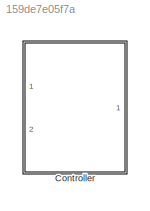
MODEL slx_159de7e05f7a
KIND library
CONFIG AbsTol = auto
CONFIG FixedStep = auto
CONFIG MaxStep = auto
CONFIG MinStep = auto
CONFIG PostLoadFcn = load 'sltestHeatpumpBusPostLoadFcn.mat'
CONFIG RelTol = 1e-3
CONFIG SampleTimeConstraint = Unconstrained
CONFIG Solver = VariableStepAuto
CONFIG SolverMode = Auto
CONFIG SolverName = VariableStepAuto
CONFIG StartTime = 0.0
CONFIG StopTime = 300
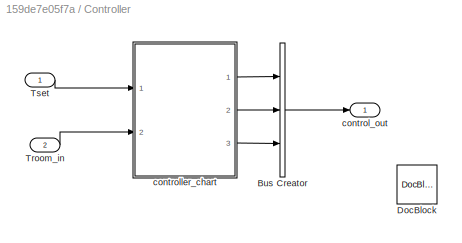
BLOCK [SubSystem] Controller
  Ports = [2, 1]
  RequestExecContextInheritance = off
  SystemSampleTime = 1
  TreatAsAtomicUnit = on
  Variant = off
BLOCK [BusCreator] Controller/Bus Creator
  DisplayOption = bar
  InheritFromInputs = on
  Inputs = 3
  NonVirtualBus = on
  OutDataTypeStr = Bus: control_bus
  Ports = [3, 1]
BLOCK [Reference] Controller/DocBlock  REF=simulink/Model-Wide
Utilities/DocBlock
  Ports = []
  SourceBlock = simulink/Model-Wide\nUtilities/DocBlock
  SourceType = DocBlock
  UserDataPersistent = on
BLOCK [Inport] Controller/Troom_in
  IconDisplay = Port number
  Port = 2
BLOCK [Inport] Controller/Tset
  IconDisplay = Port number
BLOCK [Outport] Controller/control_out
  IconDisplay = Port number
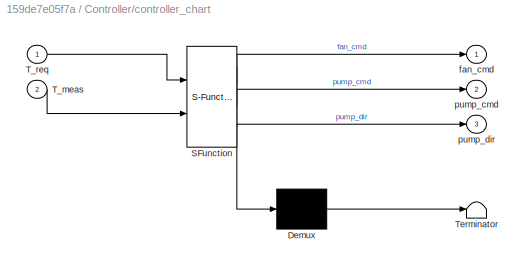
BLOCK [SubSystem] Controller/controller_chart
  ErrorFcn = Stateflow.Translate.translate
  PermitHierarchicalResolution = ExplicitOnly
  Ports = [2, 3]
  RequestExecContextInheritance = off
  SFBlockType = Chart
  TreatAsAtomicUnit = on
  Variant = off
BLOCK [Demux] Controller/controller_chart/ Demux 
  Outputs = 1
  Ports = [1, 1]
BLOCK [S-Function] Controller/controller_chart/ SFunction 
  EnableBusSupport = off
  FunctionName = sf_sfun
  PortCounts = [2 4]
  Ports = [2, 4]
  SFunctionDeploymentMode = off
  Tag = Stateflow S-Function sltestHeatpumpLibraryExample 2
BLOCK [Terminator] Controller/controller_chart/ Terminator 
BLOCK [Inport] Controller/controller_chart/T_meas
  IconDisplay = Port number
  Port = 2
BLOCK [Inport] Controller/controller_chart/T_req
  IconDisplay = Port number
BLOCK [Outport] Controller/controller_chart/fan_cmd
  IconDisplay = Port number
BLOCK [Outport] Controller/controller_chart/pump_cmd
  IconDisplay = Port number
  Port = 2
BLOCK [Outport] Controller/controller_chart/pump_dir
  IconDisplay = Port number
  Port = 3
LINE Controller/Bus Creator:1 -> Controller/control_out:1
LINE Controller/Troom_in:1 -> Controller/controller_chart:2
LINE Controller/Tset:1 -> Controller/controller_chart:1
LINE Controller/controller_chart:1 -> Controller/Bus Creator:1
LINE Controller/controller_chart:2 -> Controller/Bus Creator:2
LINE Controller/controller_chart:3 -> Controller/Bus Creator:3
CHART Test Assessment states=6 transitions=22
  STATE_LABEL 'Test_Assessments'
  STATE_LABEL "Check_idle\na = control_out.fan_cmd == 0 &&...\n    control_out.pump_cmd == 0 &&...\n    control_out.pump_dir == 0;\nverify(a,'All signals must be off at idle');"
  STATE_LABEL "Check_fan\na = control_out.fan_cmd == 1 &&...\n    control_out.pump_cmd == 0 &&...\n    control_out.pump_dir == 0;\nverify(a,'Only fan shall be active when 2 < delta T < 4');"
  STATE_LABEL "Check_cooling\na = control_out.fan_cmd == 1 &&...\n    control_out.pump_cmd == 1 &&...\n    control_out.pump_dir == 1;\nverify(a,'Cooling signal failure')"
  STATE_LABEL "Check_heating\na = control_out.fan_cmd == 1 &&...\n    control_out.pump_cmd == 1 &&...\n    control_out.pump_dir == -1;\nverify(a,'Heating signal failure')"
  STATE_LABEL 'Else'
  STATE_LABEL '[abs(Troom_in - Tset) < 2]'
  STATE_LABEL '[~in(Check_idle)]'
  STATE_LABEL '[abs(Troom_in - Tset) >= 2 && abs(Troom_in - Tset) < 4]'
  STATE_LABEL '[~in(Check_fan)]'
  STATE_LABEL '[(Troom_in - Tset) >= 4]'
  STATE_LABEL '[~in(Check_cooling)]'
  STATE_LABEL '[(Troom_in - Tset) <= -4]'
  STATE_LABEL '[~in(Check_heating)]'
  STATE_LABEL '[~in(Else)]'
  STATE_LABEL "Check_idle\na = control_out.fan_cmd == 0 &&...\n    control_out.pump_cmd == 0 &&...\n    control_out.pump_dir == 0;\nverify(a,'All signals must be off at idle');"
  STATE_LABEL "Check_fan\na = control_out.fan_cmd == 1 &&...\n    control_out.pump_cmd == 0 &&...\n    control_out.pump_dir == 0;\nverify(a,'Only fan shall be active when 2 < delta T < 4');"
  STATE_LABEL "Check_cooling\na = control_out.fan_cmd == 1 &&...\n    control_out.pump_cmd == 1 &&...\n    control_out.pump_dir == 1;\nverify(a,'Cooling signal failure')"
  STATE_LABEL "Check_heating\na = control_out.fan_cmd == 1 &&...\n    control_out.pump_cmd == 1 &&...\n    control_out.pump_dir == -1;\nverify(a,'Heating signal failure')"
  STATE_LABEL 'Else'
CHART Test Sequence states=14 transitions=14
  STATE_LABEL 'Requirement1'
  STATE_LABEL 'Initialize\nTset = 75;\nTroom_in = 75;\nend_test = 0;'
  STATE_LABEL 'Test_signals\nTroom_in = 75+ramp(et*0.1);'
  STATE_LABEL 'End\nend_test = 1;'
  STATE_LABEL '[true]'
  STATE_LABEL '[Troom_in >= 75.5]'
  STATE_LABEL 'Initialize\nTset = 75;\nTroom_in = 75;\nend_test = 0;'
  STATE_LABEL 'Test_signals\nTroom_in = 75+ramp(et*0.1);'
  STATE_LABEL 'End\nend_test = 1;'
  STATE_LABEL 'Requirement2'
  STATE_LABEL 'Initialize\nTset = 75;\nTroom_in = 75;\nend_test = 0;'
  STATE_LABEL 'Test_signals\nTroom_in = 75 + ramp(et*0.1);'
  STATE_LABEL 'End\nend_test = 1;'
  STATE_LABEL '[true]'
  STATE_LABEL '[Troom_in >= 78]'
  STATE_LABEL 'Initialize\nTset = 75;\nTroom_in = 75;\nend_test = 0;'
  STATE_LABEL 'Test_signals\nTroom_in = 75 + ramp(et*0.1);'
  STATE_LABEL 'End\nend_test = 1;'
  STATE_LABEL 'Requirement3'
  STATE_LABEL 'Initialize\nTset = 75;\nTroom_in = 75;\nend_test = 0;'
  STATE_LABEL 'Cold_outside\nTroom_in = 75 - ramp(et*0.1);'
  STATE_LABEL 'Hot_outside\nTroom_in = 75 + ramp(et*0.1);'
  STATE_LABEL 'End\nend_test = 1;'
  STATE_LABEL '[true]'
  STATE_LABEL '[Troom_in <= 66]'
  STATE_LABEL '[Troom_in >= 84]'
  STATE_LABEL 'Initialize\nTset = 75;\nTroom_in = 75;\nend_test = 0;'
  STATE_LABEL 'Cold_outside\nTroom_in = 75 - ramp(et*0.1);'
  STATE_LABEL 'Hot_outside\nTroom_in = 75 + ramp(et*0.1);'
  STATE_LABEL 'End\nend_test = 1;'
  STATE_LABEL 'Stop'
CHART Controller/controller_chart states=7 transitions=9
  STATE_LABEL 'IDLE\nentry:\nfan_cmd = 0;\n pump_cmd = 0;\n pump_dir = 0;'
  STATE_LABEL 'RUNNING'
  STATE_LABEL 'FAN_ONLY\nentry:\nfan_cmd = 1;\n pump_cmd = 0;\n pump_dir = 0;'
  STATE_LABEL 'COOLING\nentry:\nfan_cmd = 1;\n pump_cmd = 1;\n pump_dir = 1;'
  STATE_LABEL 'HEATING\nentry:\nfan_cmd = 1;\n pump_cmd = 1;\n pump_dir = -1;'
  STATE_LABEL 'after(2,sec)\n[mag_T(T_req,T_meas) < 4]'
  STATE_LABEL 'after(2,sec)\n[mag_T(T_req,T_meas) < 4]'
  STATE_LABEL 'after(2,sec)\n[mag_T(T_req,T_meas) >= 4]'
  STATE_LABEL '[sign_T(T_req, T_meas) == -1]'
  STATE_LABEL 'FAN_ONLY\nentry:\nfan_cmd = 1;\n pump_cmd = 0;\n pump_dir = 0;'
  STATE_LABEL 'COOLING\nentry:\nfan_cmd = 1;\n pump_cmd = 1;\n pump_dir = 1;'
  STATE_LABEL 'HEATING\nentry:\nfan_cmd = 1;\n pump_cmd = 1;\n pump_dir = -1;'
  STATE_LABEL 'Mag  = mag_T(T_req_in, T_meas_in)'
  STATE_LABEL 'SCRIPT:\nfunction Mag  = mag_T(T_req_in, T_meas_in)\n%#codegen\n\nMag = abs(T_req_in - T_meas_in);'
  STATE_LABEL 'Tdir = sign_T(T_req_in,T_meas_in)'
  STATE_LABEL 'SCRIPT:\nfunction Tdir = sign_T(T_req_in,T_meas_in)\n %#codegen\n \nTdir = sign(T_req_in - T_meas_in);'
